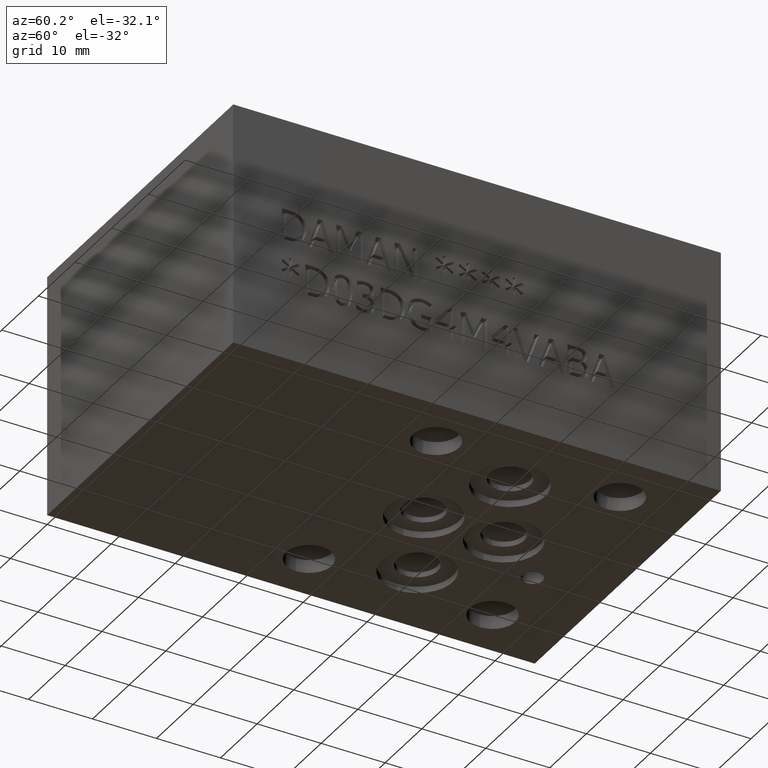
[diagram: clean part render]
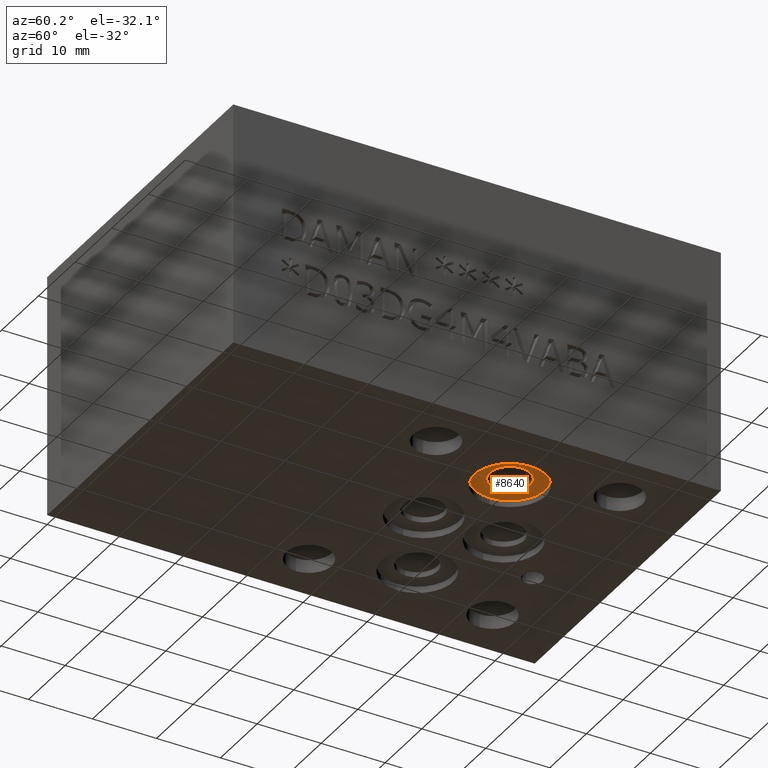
[diagram: same view with one face highlighted and labeled with its STEP entity id]
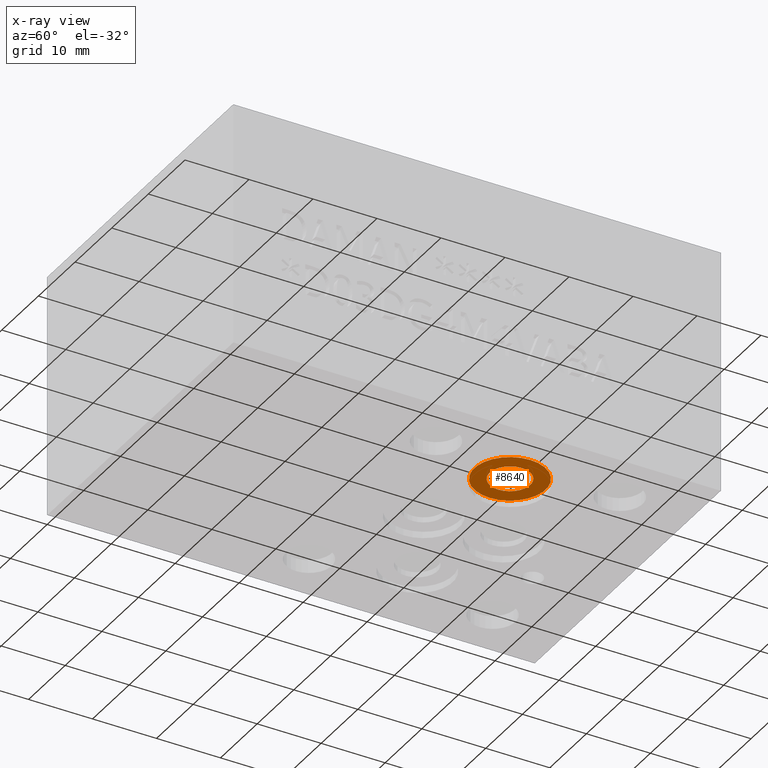
[diagram: x-ray of the same camera — body ghosted, the highlighted face saturated]
A machine part, auxiliary view. The second image highlights one B-rep face of the part: STEP entity #8640.
The next image is the same camera in x-ray: the body ghosted, the highlighted face saturated — about 0% of this face is hidden behind the body in this view.
In plain terms, the highlighted planar face has unit normal (0, 0, -1).
Its self-contained STEP definition (entity closure, byte-faithful):
#43=CIRCLE('',#9017,5.5626);
#44=CIRCLE('',#9018,5.5626);
#45=CIRCLE('',#9020,3.175);
#478=FACE_BOUND('',#1354,.T.);
#879=FACE_OUTER_BOUND('',#1353,.T.);
#1353=EDGE_LOOP('',(#7250,#7251));
#1354=EDGE_LOOP('',(#7252));
#3920=VERTEX_POINT('',#14188);
#3921=VERTEX_POINT('',#14190);
#3922=VERTEX_POINT('',#14194);
#5069=EDGE_CURVE('',#3921,#3920,#43,.T.);
#5070=EDGE_CURVE('',#3920,#3921,#44,.T.);
#5071=EDGE_CURVE('',#3922,#3922,#45,.T.);
#7250=ORIENTED_EDGE('',*,*,#5069,.T.);
#7251=ORIENTED_EDGE('',*,*,#5070,.T.);
#7252=ORIENTED_EDGE('',*,*,#5071,.F.);
#7901=PLANE('',#9019);
#8640=ADVANCED_FACE('',(#879,#478),#7901,.T.);
#9017=AXIS2_PLACEMENT_3D('',#14191,#10624,#10625);
#9018=AXIS2_PLACEMENT_3D('',#14192,#10626,#10627);
#9019=AXIS2_PLACEMENT_3D('',#14193,#10628,#10629);
#9020=AXIS2_PLACEMENT_3D('',#14195,#10630,#10631);
#10624=DIRECTION('center_axis',(0.,0.,-1.));
#10625=DIRECTION('ref_axis',(1.,0.,0.));
#10626=DIRECTION('center_axis',(0.,0.,-1.));
#10627=DIRECTION('ref_axis',(1.,0.,0.));
#10628=DIRECTION('center_axis',(0.,0.,-1.));
#10629=DIRECTION('ref_axis',(1.,0.,0.));
#10630=DIRECTION('center_axis',(0.,0.,-1.));
#10631=DIRECTION('ref_axis',(1.,0.,0.));
#14188=CARTESIAN_POINT('',(32.258,50.673,1.016));
#14190=CARTESIAN_POINT('',(43.3832,50.673,1.016));
#14191=CARTESIAN_POINT('Origin',(37.8206,50.673,1.016));
#14192=CARTESIAN_POINT('Origin',(37.8206,50.673,1.016));
#14193=CARTESIAN_POINT('Origin',(37.8206,50.673,1.016));
#14194=CARTESIAN_POINT('',(34.6456,50.673,1.016));
#14195=CARTESIAN_POINT('Origin',(37.8206,50.673,1.016));